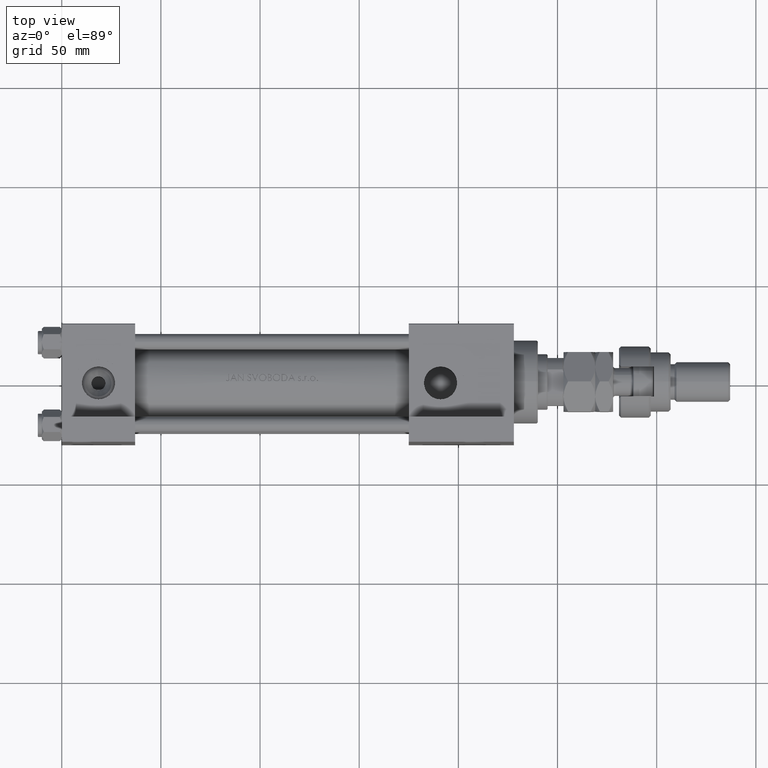
[diagram: clean part render]
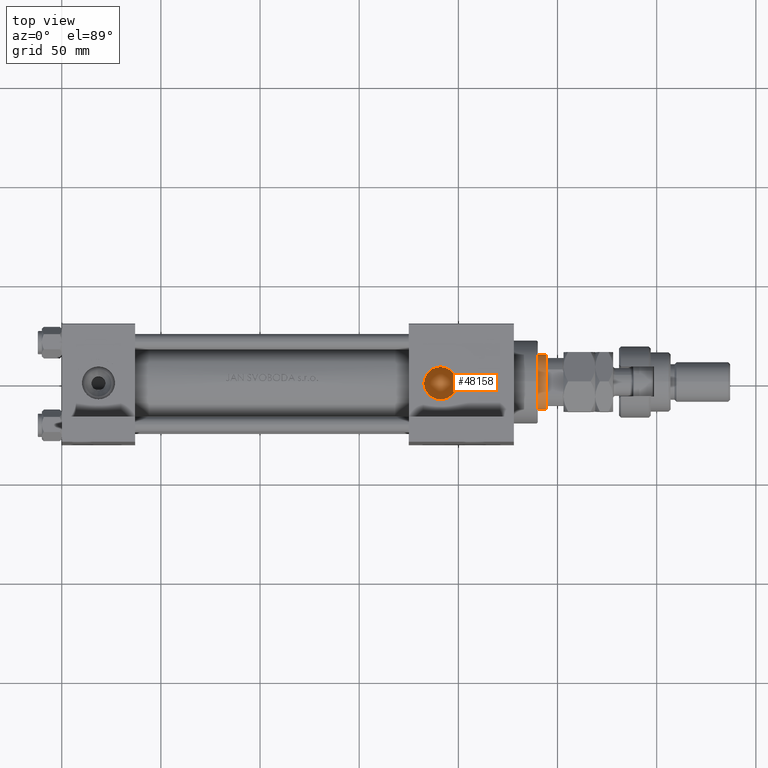
[diagram: same view with one face highlighted and labeled with its STEP entity id]
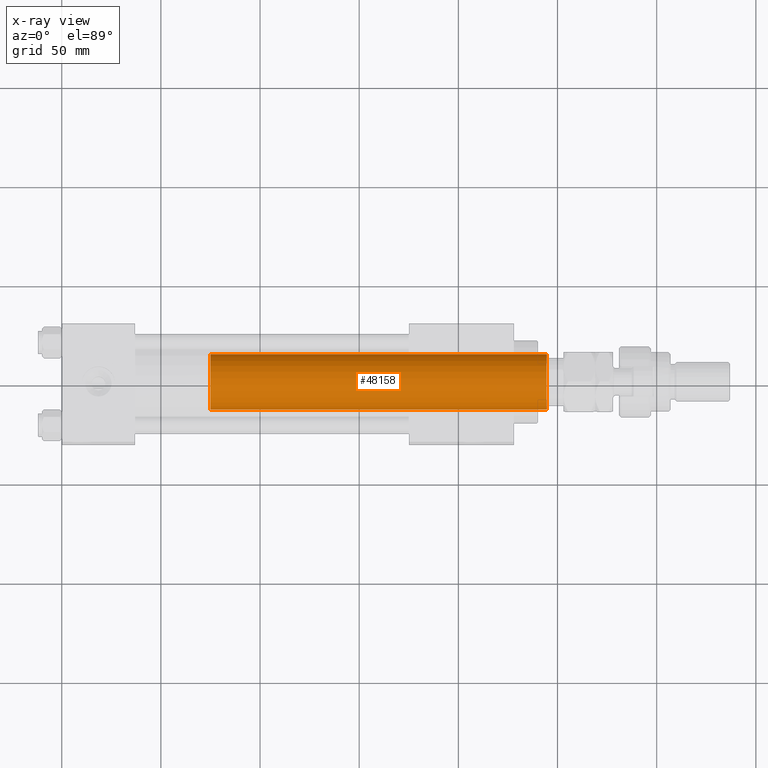
[diagram: x-ray of the same camera — body ghosted, the highlighted face saturated]
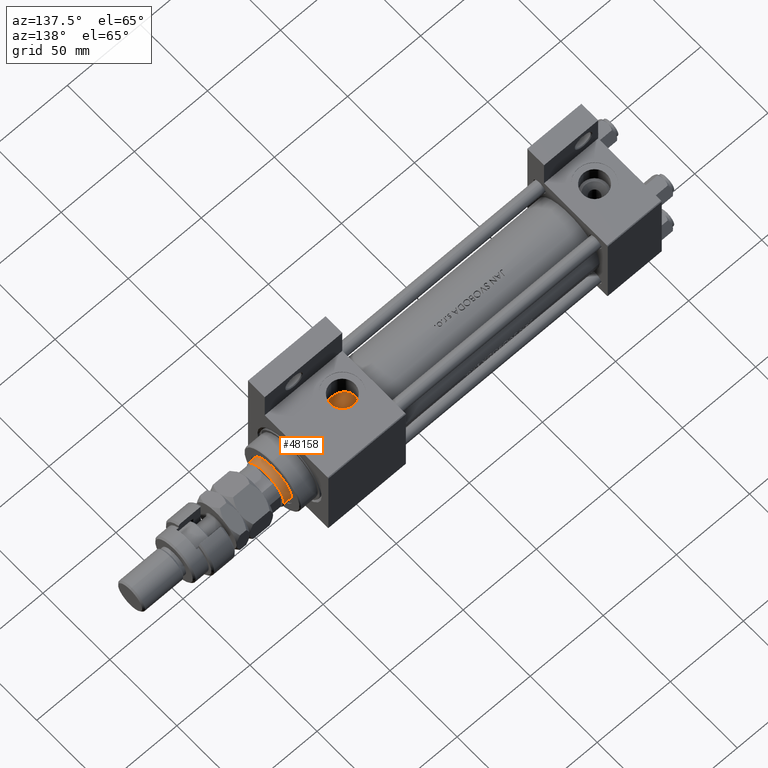
[diagram: same view with one face highlighted and labeled with its STEP entity id]
A machine part, top view. The second image highlights one B-rep face of the part: STEP entity #48158.
The next image is the same camera in x-ray: the body ghosted, the highlighted face saturated — about 0% of this face is hidden behind the body in this view.
A second angle (auxiliary view) of the same face is appended — the face is thin or edge-on in the first view.
In plain terms, the highlighted cylindrical surface (edge-blend (fillet) strip) has radius 14 mm, axis along (-1, 0, 0).
Its self-contained STEP definition (entity closure, byte-faithful):
#401 = VERTEX_POINT ( 'NONE', #17863 ) ;
#652 = AXIS2_PLACEMENT_3D ( 'NONE', #51964, #27697, #3172 ) ;
#1763 = DIRECTION ( 'NONE',  ( 0.000000000000000000, 0.000000000000000000, 1.000000000000000000 ) ) ;
#2531 = ORIENTED_EDGE ( 'NONE', *, *, #23193, .F. ) ;
#3172 = DIRECTION ( 'NONE',  ( 1.000000000000000000, 0.000000000000000000, 0.000000000000000000 ) ) ;
#3297 = FACE_OUTER_BOUND ( 'NONE', #11099, .T. ) ;
#3519 = EDGE_CURVE ( 'NONE', #3822, #401, #35157, .T. ) ;
#3822 = VERTEX_POINT ( 'NONE', #20051 ) ;
#4008 = CARTESIAN_POINT ( 'NONE',  ( -14.00000000000000178, 0.000000000000000000, 208.0000000000000284 ) ) ;
#6938 = VERTEX_POINT ( 'NONE', #44999 ) ;
#7614 = CARTESIAN_POINT ( 'NONE',  ( 14.00000000000000178, 1.714505518806294835E-15, 208.0000000000000284 ) ) ;
#7871 = ORIENTED_EDGE ( 'NONE', *, *, #3519, .T. ) ;
#8031 = EDGE_CURVE ( 'NONE', #401, #32242, #51098, .T. ) ;
#10702 = DIRECTION ( 'NONE',  ( 1.000000000000000000, 0.000000000000000000, 0.000000000000000000 ) ) ;
#11099 = EDGE_LOOP ( 'NONE', ( #2531, #34316, #7871, #34562 ) ) ;
#11213 = CARTESIAN_POINT ( 'NONE',  ( 0.000000000000000000, 0.000000000000000000, 208.0000000000000284 ) ) ;
#12189 = DIRECTION ( 'NONE',  ( -0.000000000000000000, -0.000000000000000000, -1.000000000000000000 ) ) ;
#15950 = DIRECTION ( 'NONE',  ( -0.000000000000000000, -0.000000000000000000, -1.000000000000000000 ) ) ;
#16086 = DIRECTION ( 'NONE',  ( -0.000000000000000000, -0.000000000000000000, -1.000000000000000000 ) ) ;
#17863 = CARTESIAN_POINT ( 'NONE',  ( -14.00000000000000178, 0.000000000000000000, 38.00000000000000000 ) ) ;
#18322 = AXIS2_PLACEMENT_3D ( 'NONE', #11213, #15950, #35475 ) ;
#20051 = CARTESIAN_POINT ( 'NONE',  ( -14.00000000000000178, 0.000000000000000000, 207.5000000000000284 ) ) ;
#23193 = EDGE_CURVE ( 'NONE', #6938, #32242, #43868, .T. ) ;
#25931 = CIRCLE ( 'NONE', #652, 14.00000000000000178 ) ;
#27697 = DIRECTION ( 'NONE',  ( 0.000000000000000000, 0.000000000000000000, -1.000000000000000000 ) ) ;
#28345 = AXIS2_PLACEMENT_3D ( 'NONE', #46857, #1763, #10702 ) ;
#31267 = CARTESIAN_POINT ( 'NONE',  ( 14.00000000000000178, 1.714505518806294835E-15, 38.00000000000000000 ) ) ;
#32242 = VERTEX_POINT ( 'NONE', #31267 ) ;
#34316 = ORIENTED_EDGE ( 'NONE', *, *, #44750, .T. ) ;
#34562 = ORIENTED_EDGE ( 'NONE', *, *, #8031, .T. ) ;
#35157 = LINE ( 'NONE', #4008, #38396 ) ;
#35475 = DIRECTION ( 'NONE',  ( -1.000000000000000000, 0.000000000000000000, 0.000000000000000000 ) ) ;
#37901 = VECTOR ( 'NONE', #16086, 1000.000000000000000 ) ;
#38396 = VECTOR ( 'NONE', #12189, 1000.000000000000000 ) ;
#43868 = LINE ( 'NONE', #7614, #37901 ) ;
#43911 = CYLINDRICAL_SURFACE ( 'NONE', #18322, 14.00000000000000178 ) ;
#44750 = EDGE_CURVE ( 'NONE', #6938, #3822, #25931, .T. ) ;
#44999 = CARTESIAN_POINT ( 'NONE',  ( 14.00000000000000178, 1.714505518806294835E-15, 207.5000000000000284 ) ) ;
#46857 = CARTESIAN_POINT ( 'NONE',  ( 0.000000000000000000, 0.000000000000000000, 38.00000000000000000 ) ) ;
#48158 = ADVANCED_FACE ( 'NONE', ( #3297 ), #43911, .T. ) ;
#51098 = CIRCLE ( 'NONE', #28345, 14.00000000000000178 ) ;
#51964 = CARTESIAN_POINT ( 'NONE',  ( 0.000000000000000000, 0.000000000000000000, 207.5000000000000284 ) ) ;